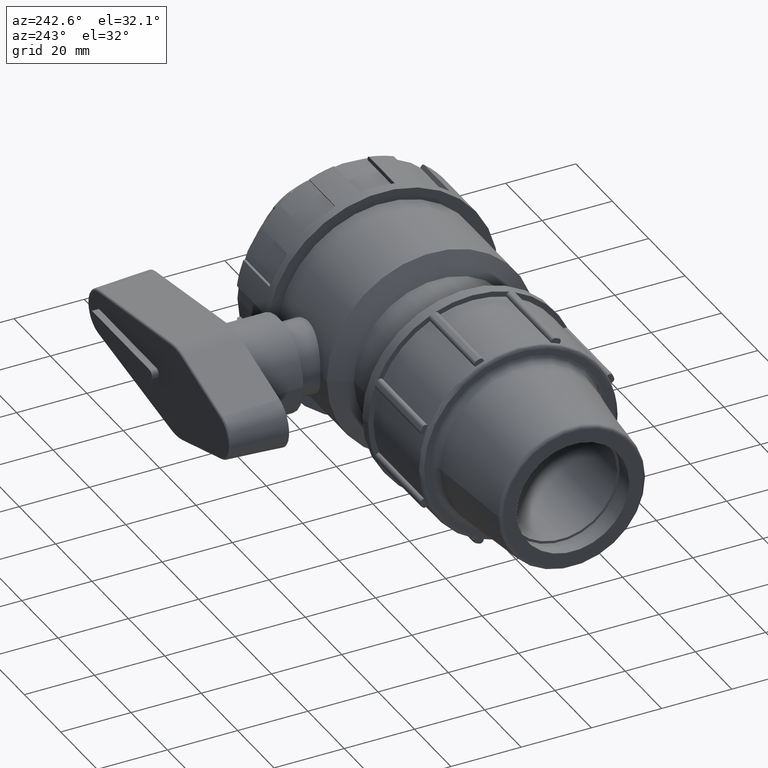
[diagram: clean part render]
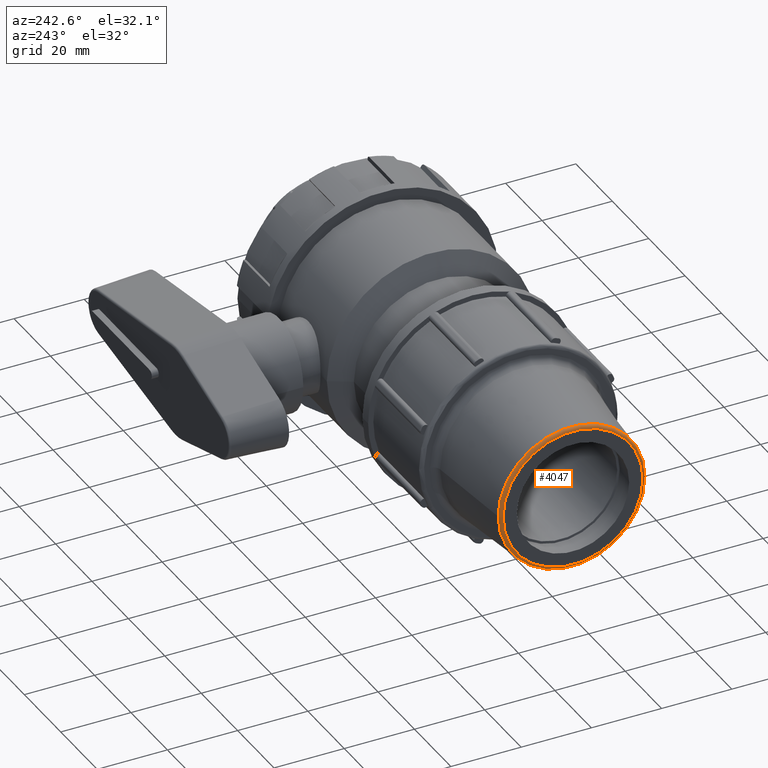
[diagram: same view with one face highlighted and labeled with its STEP entity id]
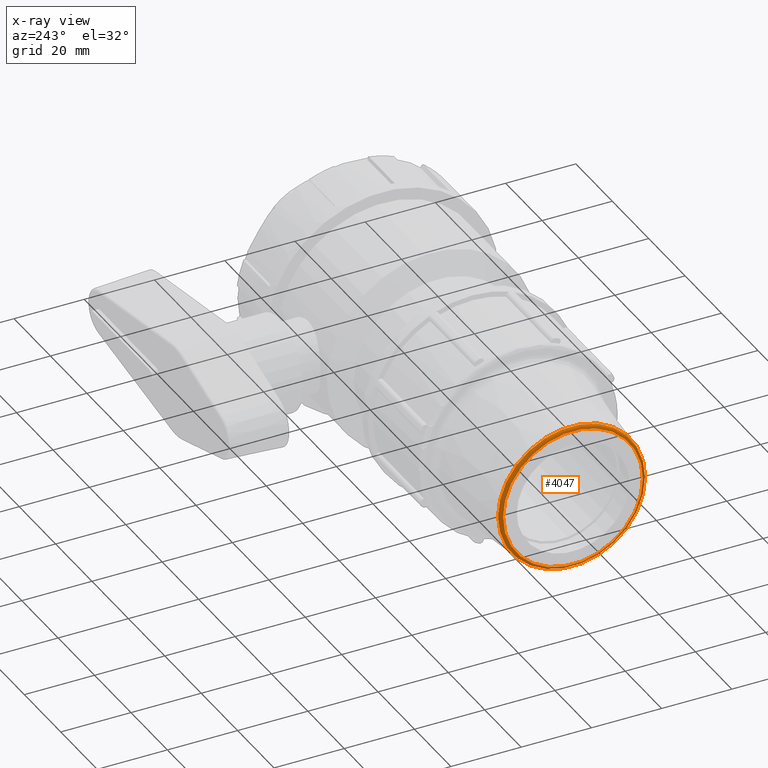
[diagram: x-ray of the same camera — body ghosted, the highlighted face saturated]
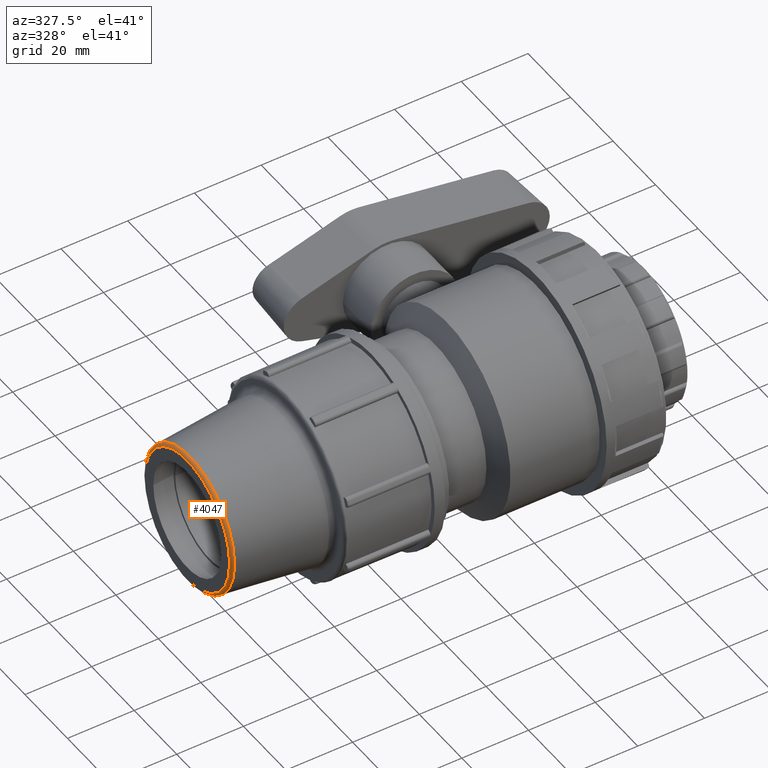
[diagram: same view with one face highlighted and labeled with its STEP entity id]
A machine part, auxiliary view. The second image highlights one B-rep face of the part: STEP entity #4047.
The next image is the same camera in x-ray: the body ghosted, the highlighted face saturated — about 0% of this face is hidden behind the body in this view.
A second angle (auxiliary view) of the same face is appended — the face is thin or edge-on in the first view.
In plain terms, the highlighted toroidal blend (fillet) surface has major radius 19.9225 mm and minor (blend) radius 0.96 mm.
Its self-contained STEP definition (entity closure, byte-faithful):
#35=FACE_BOUND('',#677,.T.);
#76=TOROIDAL_SURFACE('',#4353,19.9225407850178,0.96);
#427=FACE_OUTER_BOUND('',#676,.T.);
#676=EDGE_LOOP('',(#3007));
#677=EDGE_LOOP('',(#3008));
#1414=CIRCLE('',#4354,20.8776298978099);
#1415=CIRCLE('',#4355,19.9225407850178);
#1737=VERTEX_POINT('',#7053);
#1738=VERTEX_POINT('',#7055);
#2220=EDGE_CURVE('',#1737,#1737,#1414,.T.);
#2221=EDGE_CURVE('',#1738,#1738,#1415,.T.);
#3007=ORIENTED_EDGE('',*,*,#2220,.T.);
#3008=ORIENTED_EDGE('',*,*,#2221,.T.);
#4047=ADVANCED_FACE('',(#427,#35),#76,.T.);
#4353=AXIS2_PLACEMENT_3D('',#7052,#5043,#5044);
#4354=AXIS2_PLACEMENT_3D('',#7054,#5045,#5046);
#4355=AXIS2_PLACEMENT_3D('',#7056,#5047,#5048);
#5043=DIRECTION('center_axis',(-1.,0.,0.));
#5044=DIRECTION('ref_axis',(0.,0.,1.));
#5045=DIRECTION('center_axis',(-1.,0.,0.));
#5046=DIRECTION('ref_axis',(0.,-1.,-3.06161699786838E-17));
#5047=DIRECTION('center_axis',(1.,0.,0.));
#5048=DIRECTION('ref_axis',(0.,-1.,-1.83697019872103E-16));
#7052=CARTESIAN_POINT('Origin',(-90.3733333333333,0.,0.));
#7053=CARTESIAN_POINT('',(-90.4703116124784,20.8776298978099,1.2783861314068E-15));
#7054=CARTESIAN_POINT('Origin',(-90.4703116124784,0.,3.195965328517E-15));
#7055=CARTESIAN_POINT('',(-91.3333333333333,19.9225407850178,6.09951895081365E-15));
#7056=CARTESIAN_POINT('Origin',(-91.3333333333333,0.,0.));